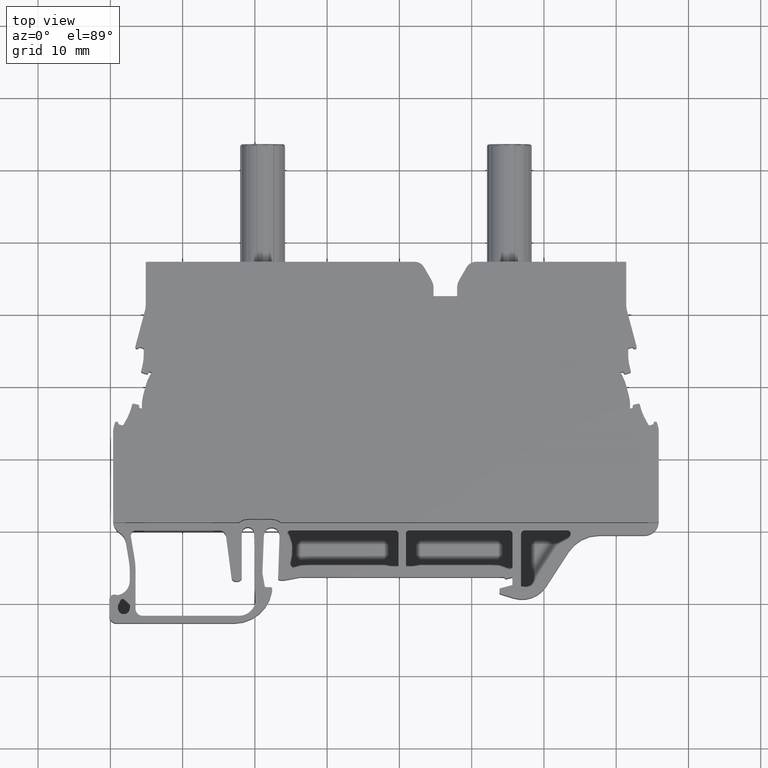
[diagram: clean part render]
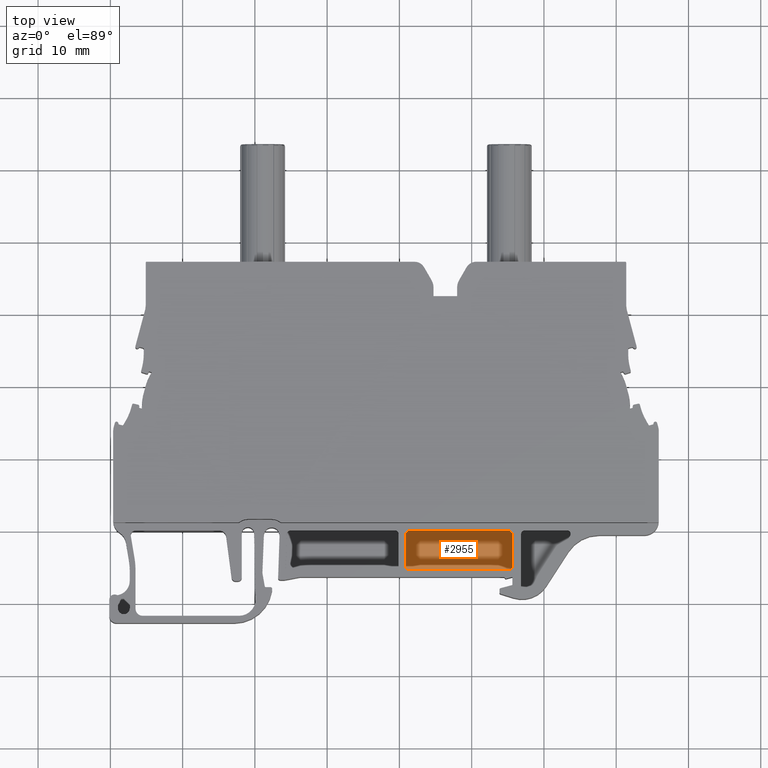
[diagram: same view with one face highlighted and labeled with its STEP entity id]
A machine part, top view. The second image highlights one B-rep face of the part: STEP entity #2955.
In plain terms, the highlighted planar face has unit normal (0, 0, 1).
Its self-contained STEP definition (entity closure, byte-faithful):
#782 = ORIENTED_EDGE ( 'NONE', *, *, #2467, .F. ) ;
#806 = ORIENTED_EDGE ( 'NONE', *, *, #2447, .F. ) ;
#2401 = EDGE_CURVE ( 'NONE', #23556, #23557, #3497, .T. ) ;
#2410 = EDGE_CURVE ( 'NONE', #23565, #23563, #3472, .T. ) ;
#2447 = EDGE_CURVE ( 'NONE', #23560, #23547, #16409, .T. ) ;
#2462 = EDGE_CURVE ( 'NONE', #23579, #23610, #16472, .T. ) ;
#2467 = EDGE_CURVE ( 'NONE', #23610, #23565, #7880, .T. ) ;
#2474 = EDGE_CURVE ( 'NONE', #23563, #23560, #7964, .T. ) ;
#2486 = EDGE_CURVE ( 'NONE', #23556, #23579, #7959, .T. ) ;
#2522 = EDGE_CURVE ( 'NONE', #23547, #23557, #8013, .T. ) ;
#2955 = ADVANCED_FACE ( 'NONE', ( #21510 ), #21506, .T. ) ;
#3472 = LINE ( 'NONE', #3474, #13184 ) ;
#3474 = CARTESIAN_POINT ( 'NONE',  ( 1525.640206411480000, 0.0000000000000000000, 4.649999999999999500 ) ) ;
#3475 = DIRECTION ( 'NONE',  ( 0.0000000000000000000, -1.000000000000000000, 0.0000000000000000000 ) ) ;
#3478 = DIRECTION ( 'NONE',  ( 0.0000000000000000000, -1.000000000000000000, 0.0000000000000000000 ) ) ;
#3497 = LINE ( 'NONE', #3506, #13252 ) ;
#3506 = CARTESIAN_POINT ( 'NONE',  ( 1510.877591475845100, 0.0000000000000000000, 4.649999999999999500 ) ) ;
#4178 = ORIENTED_EDGE ( 'NONE', *, *, #2474, .F. ) ;
#4180 = ORIENTED_EDGE ( 'NONE', *, *, #2401, .T. ) ;
#4183 = ORIENTED_EDGE ( 'NONE', *, *, #2486, .F. ) ;
#4184 = ORIENTED_EDGE ( 'NONE', *, *, #2410, .F. ) ;
#4187 = ORIENTED_EDGE ( 'NONE', *, *, #2522, .F. ) ;
#4199 = ORIENTED_EDGE ( 'NONE', *, *, #2462, .F. ) ;
#7880 = CIRCLE ( 'NONE', #7957, 0.4999999999999449300 ) ;
#7915 = VECTOR ( 'NONE', #16462, 1000.000000000000000 ) ;
#7918 = VECTOR ( 'NONE', #16400, 1000.000000000000100 ) ;
#7931 = AXIS2_PLACEMENT_3D ( 'NONE', #16561, #16621, #16550 ) ;
#7935 = AXIS2_PLACEMENT_3D ( 'NONE', #16500, #16493, #16504 ) ;
#7957 = AXIS2_PLACEMENT_3D ( 'NONE', #16453, #16455, #16456 ) ;
#7959 = CIRCLE ( 'NONE', #7931, 0.4999999999999449300 ) ;
#7964 = CIRCLE ( 'NONE', #7935, 0.4999999999999449300 ) ;
#8013 = CIRCLE ( 'NONE', #8019, 0.4999999999999449300 ) ;
#8019 = AXIS2_PLACEMENT_3D ( 'NONE', #16741, #16754, #16697 ) ;
#10371 = CARTESIAN_POINT ( 'NONE',  ( 1511.377591459405000, 994.6236397034458600, 4.649999999999999500 ) ) ;
#10376 = CARTESIAN_POINT ( 'NONE',  ( 1510.877591475845100, 995.1236397034459700, 4.649999999999999500 ) ) ;
#10407 = CARTESIAN_POINT ( 'NONE',  ( 1510.877591475845100, 999.5711034983399900, 4.649999999999999500 ) ) ;
#10419 = CARTESIAN_POINT ( 'NONE',  ( 1525.140206395040200, 994.6236392509399600, 4.649999999999999500 ) ) ;
#10429 = CARTESIAN_POINT ( 'NONE',  ( 1525.640206411480000, 995.1236392509400700, 4.649999999999999500 ) ) ;
#10499 = CARTESIAN_POINT ( 'NONE',  ( 1525.640206411480000, 999.5711034983399900, 4.649999999999999500 ) ) ;
#10618 = CARTESIAN_POINT ( 'NONE',  ( 1511.377591475844800, 1000.071103498340100, 4.649999999999999500 ) ) ;
#10623 = CARTESIAN_POINT ( 'NONE',  ( 1525.140206411480000, 1000.071103498340100, 4.649999999999999500 ) ) ;
#13184 = VECTOR ( 'NONE', #3475, 1000.000000000000000 ) ;
#13252 = VECTOR ( 'NONE', #3478, 1000.000000000000000 ) ;
#16396 = CARTESIAN_POINT ( 'NONE',  ( 3.270254666103015700E-005, 994.6236893965060500, 4.649999999999999500 ) ) ;
#16400 = DIRECTION ( 'NONE',  ( -0.9999999999999994400, 3.287931607668888200E-008, 0.0000000000000000000 ) ) ;
#16409 = LINE ( 'NONE', #16396, #7918 ) ;
#16453 = CARTESIAN_POINT ( 'NONE',  ( 1525.140206411480000, 999.5711034983399900, 4.649999999999999500 ) ) ;
#16455 = DIRECTION ( 'NONE',  ( -0.0000000000000000000, -0.0000000000000000000, -1.000000000000000000 ) ) ;
#16456 = DIRECTION ( 'NONE',  ( 1.000000000000000000, 0.0000000000000000000, 0.0000000000000000000 ) ) ;
#16462 = DIRECTION ( 'NONE',  ( 1.000000000000000000, 1.613389649884629900E-014, 0.0000000000000000000 ) ) ;
#16469 = CARTESIAN_POINT ( 'NONE',  ( -1.613504367532880200E-011, 1000.071103498314100, 4.649999999999999500 ) ) ;
#16472 = LINE ( 'NONE', #16469, #7915 ) ;
#16493 = DIRECTION ( 'NONE',  ( -0.0000000000000000000, -0.0000000000000000000, -1.000000000000000000 ) ) ;
#16500 = CARTESIAN_POINT ( 'NONE',  ( 1525.140206411480000, 995.1236392509400700, 4.649999999999999500 ) ) ;
#16504 = DIRECTION ( 'NONE',  ( 1.000000000000000000, 0.0000000000000000000, 0.0000000000000000000 ) ) ;
#16550 = DIRECTION ( 'NONE',  ( 1.000000000000000000, 0.0000000000000000000, 0.0000000000000000000 ) ) ;
#16561 = CARTESIAN_POINT ( 'NONE',  ( 1511.377591475844800, 999.5711034983399900, 4.649999999999999500 ) ) ;
#16621 = DIRECTION ( 'NONE',  ( -0.0000000000000000000, -0.0000000000000000000, -1.000000000000000000 ) ) ;
#16697 = DIRECTION ( 'NONE',  ( 1.000000000000000000, 0.0000000000000000000, 0.0000000000000000000 ) ) ;
#16741 = CARTESIAN_POINT ( 'NONE',  ( 1511.377591475844800, 995.1236397034459700, 4.649999999999999500 ) ) ;
#16754 = DIRECTION ( 'NONE',  ( -0.0000000000000000000, -0.0000000000000000000, -1.000000000000000000 ) ) ;
#17665 = AXIS2_PLACEMENT_3D ( 'NONE', #21494, #21476, #21520 ) ;
#21476 = DIRECTION ( 'NONE',  ( 0.0000000000000000000, 0.0000000000000000000, 1.000000000000000000 ) ) ;
#21494 = CARTESIAN_POINT ( 'NONE',  ( 0.0000000000000000000, 0.0000000000000000000, 4.649999999999999500 ) ) ;
#21506 = PLANE ( 'NONE',  #17665 ) ;
#21510 = FACE_OUTER_BOUND ( 'NONE', #22398, .T. ) ;
#21520 = DIRECTION ( 'NONE',  ( 1.000000000000000000, 0.0000000000000000000, 0.0000000000000000000 ) ) ;
#22398 = EDGE_LOOP ( 'NONE', ( #806, #4178, #4184, #782, #4199, #4183, #4180, #4187 ) ) ;
#23547 = VERTEX_POINT ( 'NONE', #10371 ) ;
#23556 = VERTEX_POINT ( 'NONE', #10407 ) ;
#23557 = VERTEX_POINT ( 'NONE', #10376 ) ;
#23560 = VERTEX_POINT ( 'NONE', #10419 ) ;
#23563 = VERTEX_POINT ( 'NONE', #10429 ) ;
#23565 = VERTEX_POINT ( 'NONE', #10499 ) ;
#23579 = VERTEX_POINT ( 'NONE', #10618 ) ;
#23610 = VERTEX_POINT ( 'NONE', #10623 ) ;